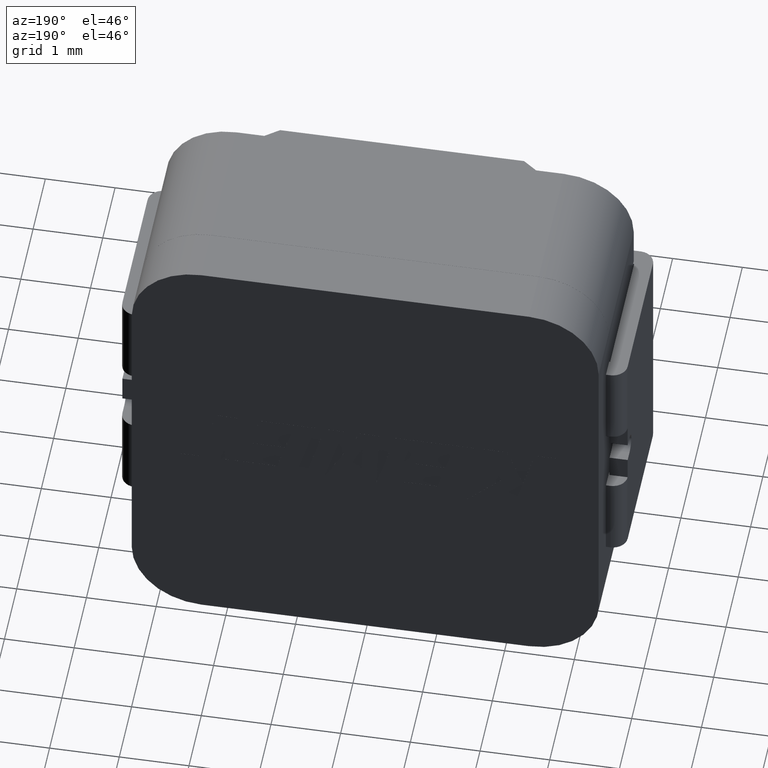
[diagram: clean part render]
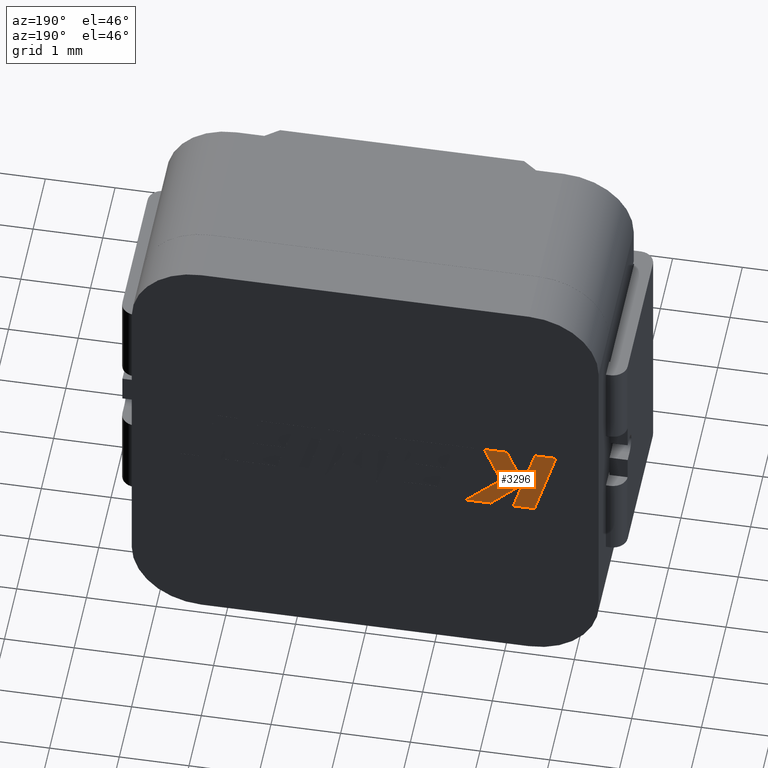
[diagram: same view with one face highlighted and labeled with its STEP entity id]
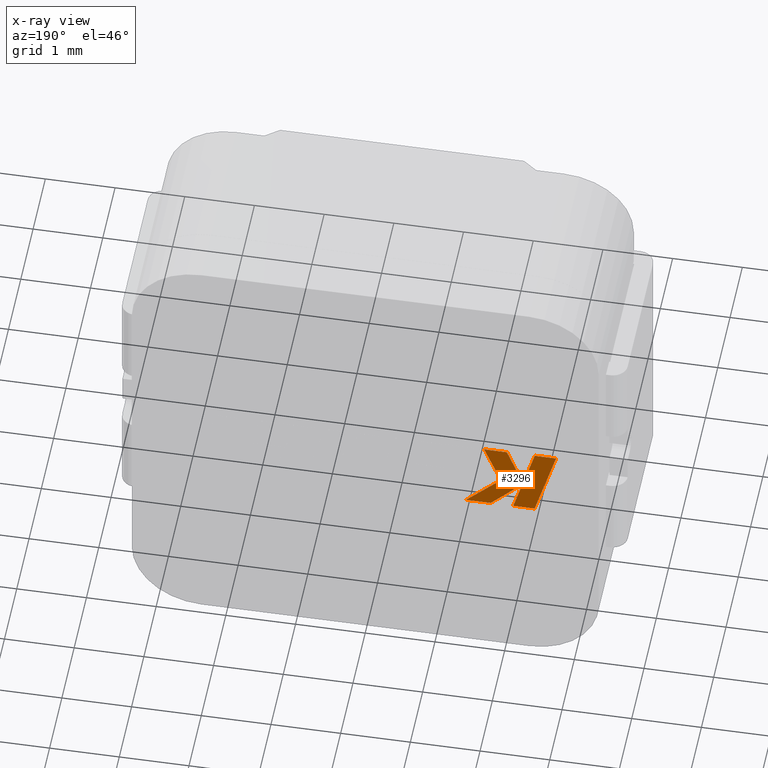
[diagram: x-ray of the same camera — body ghosted, the highlighted face saturated]
A machine part, auxiliary view. The second image highlights one B-rep face of the part: STEP entity #3296.
The next image is the same camera in x-ray: the body ghosted, the highlighted face saturated — about 0% of this face is hidden behind the body in this view.
In plain terms, the highlighted planar face has unit normal (0, -1, -0).
Its self-contained STEP definition (entity closure, byte-faithful):
#127 = CARTESIAN_POINT ( 'NONE',  ( -2.738410087501095713, 3.000399999999999956, 0.5362962238577353435 ) ) ;
#133 = VERTEX_POINT ( 'NONE', #6388 ) ;
#145 = CARTESIAN_POINT ( 'NONE',  ( -2.124761659281644732, 3.000399999999999956, -0.5362962238576984841 ) ) ;
#337 = CARTESIAN_POINT ( 'NONE',  ( -2.124761659281644732, 3.000399999999999956, -0.5362962238576984841 ) ) ;
#401 = CARTESIAN_POINT ( 'NONE',  ( 0.0000000000000000000, 3.000399999999999956, 0.0000000000000000000 ) ) ;
#442 = ORIENTED_EDGE ( 'NONE', *, *, #1812, .T. ) ;
#477 = DIRECTION ( 'NONE',  ( 0.7145695586381805020, 0.0000000000000000000, -0.6995643972270430000 ) ) ;
#495 = VECTOR ( 'NONE', #1560, 999.9999999999998863 ) ;
#546 = DIRECTION ( 'NONE',  ( -0.2762033010251945808, -0.0000000000000000000, 0.9610992334315877628 ) ) ;
#571 = ORIENTED_EDGE ( 'NONE', *, *, #931, .T. ) ;
#620 = CARTESIAN_POINT ( 'NONE',  ( -2.032720429368775505, 3.000399999999999956, 0.5362962238577353435 ) ) ;
#716 = EDGE_LOOP ( 'NONE', ( #6690, #6596, #571, #5585, #442, #2250, #2215, #784, #1028, #1185, #4553 ) ) ;
#750 = VECTOR ( 'NONE', #477, 1000.000000000000000 ) ;
#784 = ORIENTED_EDGE ( 'NONE', *, *, #4276, .T. ) ;
#899 = CARTESIAN_POINT ( 'NONE',  ( -2.433413849231264248, 3.000399999999999956, 0.5362962238577353435 ) ) ;
#903 = EDGE_CURVE ( 'NONE', #6290, #6650, #2008, .T. ) ;
#931 = EDGE_CURVE ( 'NONE', #6650, #1718, #1011, .T. ) ;
#1011 = LINE ( 'NONE', #1954, #3641 ) ;
#1028 = ORIENTED_EDGE ( 'NONE', *, *, #5866, .T. ) ;
#1055 = LINE ( 'NONE', #337, #6007 ) ;
#1079 = DIRECTION ( 'NONE',  ( -1.000000000000000000, 0.0000000000000000000, -7.213721817093572462E-14 ) ) ;
#1185 = ORIENTED_EDGE ( 'NONE', *, *, #4052, .T. ) ;
#1338 = DIRECTION ( 'NONE',  ( 0.2755265765475183870, 0.0000000000000000000, -0.9612934544747531174 ) ) ;
#1453 = DIRECTION ( 'NONE',  ( -1.000000000000000000, 0.0000000000000000000, -0.0000000000000000000 ) ) ;
#1525 = VECTOR ( 'NONE', #4497, 1000.000000000000000 ) ;
#1538 = EDGE_CURVE ( 'NONE', #5093, #6290, #4581, .T. ) ;
#1560 = DIRECTION ( 'NONE',  ( 0.3725077383644726514, 0.0000000000000000000, 0.9280290862136734154 ) ) ;
#1660 = VECTOR ( 'NONE', #2949, 1000.000000000000000 ) ;
#1683 = CARTESIAN_POINT ( 'NONE',  ( -2.266489240248603210, 3.000399999999999956, -0.04609236462790534949 ) ) ;
#1718 = VERTEX_POINT ( 'NONE', #1683 ) ;
#1800 = VECTOR ( 'NONE', #2914, 1000.000000000000000 ) ;
#1812 = EDGE_CURVE ( 'NONE', #5010, #133, #3660, .T. ) ;
#1905 = LINE ( 'NONE', #620, #495 ) ;
#1954 = CARTESIAN_POINT ( 'NONE',  ( -2.266489240248603210, 3.000399999999999956, -0.04609236462790534949 ) ) ;
#1969 = LINE ( 'NONE', #3923, #1800 ) ;
#2007 = DIRECTION ( 'NONE',  ( -0.3829140317376869551, 0.0000000000000000000, -0.9237839814038721897 ) ) ;
#2008 = LINE ( 'NONE', #899, #1660 ) ;
#2206 = VECTOR ( 'NONE', #3051, 1000.000000000000000 ) ;
#2215 = ORIENTED_EDGE ( 'NONE', *, *, #6578, .T. ) ;
#2235 = FACE_OUTER_BOUND ( 'NONE', #716, .T. ) ;
#2250 = ORIENTED_EDGE ( 'NONE', *, *, #5469, .T. ) ;
#2369 = LINE ( 'NONE', #4047, #3102 ) ;
#2427 = VERTEX_POINT ( 'NONE', #145 ) ;
#2542 = CARTESIAN_POINT ( 'NONE',  ( -1.706365745749747642, 3.000399999999999956, 0.5362962238577316798 ) ) ;
#2567 = AXIS2_PLACEMENT_3D ( 'NONE', #401, #4577, #1453 ) ;
#2741 = CARTESIAN_POINT ( 'NONE',  ( -2.032720429368775505, 3.000399999999999956, 0.5362962238577353435 ) ) ;
#2881 = VERTEX_POINT ( 'NONE', #5144 ) ;
#2914 = DIRECTION ( 'NONE',  ( -1.000000000000000000, -0.0000000000000000000, 0.0000000000000000000 ) ) ;
#2949 = DIRECTION ( 'NONE',  ( 1.000000000000000000, 0.0000000000000000000, 0.0000000000000000000 ) ) ;
#2964 = EDGE_CURVE ( 'NONE', #2427, #5093, #3690, .T. ) ;
#2973 = EDGE_CURVE ( 'NONE', #1718, #5010, #1905, .T. ) ;
#2980 = CARTESIAN_POINT ( 'NONE',  ( -2.255873613064167227, 3.000399999999999956, -0.07890133570423843445 ) ) ;
#3051 = DIRECTION ( 'NONE',  ( 1.000000000000000000, 0.0000000000000000000, -1.142822720357821197E-14 ) ) ;
#3102 = VECTOR ( 'NONE', #2007, 1000.000000000000000 ) ;
#3141 = VECTOR ( 'NONE', #1079, 1000.000000000000000 ) ;
#3296 = ADVANCED_FACE ( 'NONE', ( #2235 ), #3547, .F. ) ;
#3547 = PLANE ( 'NONE',  #2567 ) ;
#3641 = VECTOR ( 'NONE', #1338, 1000.000000000000114 ) ;
#3660 = LINE ( 'NONE', #2542, #2206 ) ;
#3690 = LINE ( 'NONE', #3749, #3141 ) ;
#3749 = CARTESIAN_POINT ( 'NONE',  ( -2.430165564554246593, 3.000399999999999956, -0.5362962238577204666 ) ) ;
#3845 = DIRECTION ( 'NONE',  ( 0.2755520632520480628, 0.0000000000000000000, -0.9612861490927345764 ) ) ;
#3873 = LINE ( 'NONE', #4125, #750 ) ;
#3923 = CARTESIAN_POINT ( 'NONE',  ( -1.800031117570543904, 3.000399999999999956, -0.5362962238576762797 ) ) ;
#4047 = CARTESIAN_POINT ( 'NONE',  ( -1.947769328128563293, 3.000399999999999956, -0.04609236462791643785 ) ) ;
#4052 = EDGE_CURVE ( 'NONE', #5677, #2427, #1055, .T. ) ;
#4125 = CARTESIAN_POINT ( 'NONE',  ( -1.447050942914831717, 3.000399999999999956, -0.5362962238576762797 ) ) ;
#4276 = EDGE_CURVE ( 'NONE', #2881, #6396, #1969, .T. ) ;
#4303 = LINE ( 'NONE', #2980, #1525 ) ;
#4497 = DIRECTION ( 'NONE',  ( -0.7059037656364430813, -0.0000000000000000000, 0.7083077534944042242 ) ) ;
#4553 = ORIENTED_EDGE ( 'NONE', *, *, #2964, .T. ) ;
#4577 = DIRECTION ( 'NONE',  ( 0.0000000000000000000, -1.000000000000000000, -0.0000000000000000000 ) ) ;
#4581 = LINE ( 'NONE', #5139, #5886 ) ;
#4615 = CARTESIAN_POINT ( 'NONE',  ( -2.433413849231264248, 3.000399999999999956, 0.5362962238577353435 ) ) ;
#4779 = CARTESIAN_POINT ( 'NONE',  ( -1.800031117570543904, 3.000399999999999956, -0.5362962238576762797 ) ) ;
#5010 = VERTEX_POINT ( 'NONE', #2741 ) ;
#5093 = VERTEX_POINT ( 'NONE', #6020 ) ;
#5139 = CARTESIAN_POINT ( 'NONE',  ( -2.738410087501095713, 3.000399999999999956, 0.5362962238577353435 ) ) ;
#5144 = CARTESIAN_POINT ( 'NONE',  ( -1.447050942914831717, 3.000399999999999956, -0.5362962238576762797 ) ) ;
#5469 = EDGE_CURVE ( 'NONE', #133, #6462, #2369, .T. ) ;
#5585 = ORIENTED_EDGE ( 'NONE', *, *, #2973, .T. ) ;
#5677 = VERTEX_POINT ( 'NONE', #5917 ) ;
#5866 = EDGE_CURVE ( 'NONE', #6396, #5677, #4303, .T. ) ;
#5886 = VECTOR ( 'NONE', #546, 1000.000000000000227 ) ;
#5917 = CARTESIAN_POINT ( 'NONE',  ( -2.255873613064167227, 3.000399999999999956, -0.07890133570423843445 ) ) ;
#5994 = CARTESIAN_POINT ( 'NONE',  ( -1.947769328128563293, 3.000399999999999956, -0.04609236462791643785 ) ) ;
#6007 = VECTOR ( 'NONE', #3845, 1000.000000000000227 ) ;
#6020 = CARTESIAN_POINT ( 'NONE',  ( -2.430165564554246593, 3.000399999999999956, -0.5362962238577204666 ) ) ;
#6290 = VERTEX_POINT ( 'NONE', #127 ) ;
#6388 = CARTESIAN_POINT ( 'NONE',  ( -1.706365745749747642, 3.000399999999999956, 0.5362962238577316798 ) ) ;
#6396 = VERTEX_POINT ( 'NONE', #4779 ) ;
#6462 = VERTEX_POINT ( 'NONE', #5994 ) ;
#6578 = EDGE_CURVE ( 'NONE', #6462, #2881, #3873, .T. ) ;
#6596 = ORIENTED_EDGE ( 'NONE', *, *, #903, .T. ) ;
#6650 = VERTEX_POINT ( 'NONE', #4615 ) ;
#6690 = ORIENTED_EDGE ( 'NONE', *, *, #1538, .T. ) ;